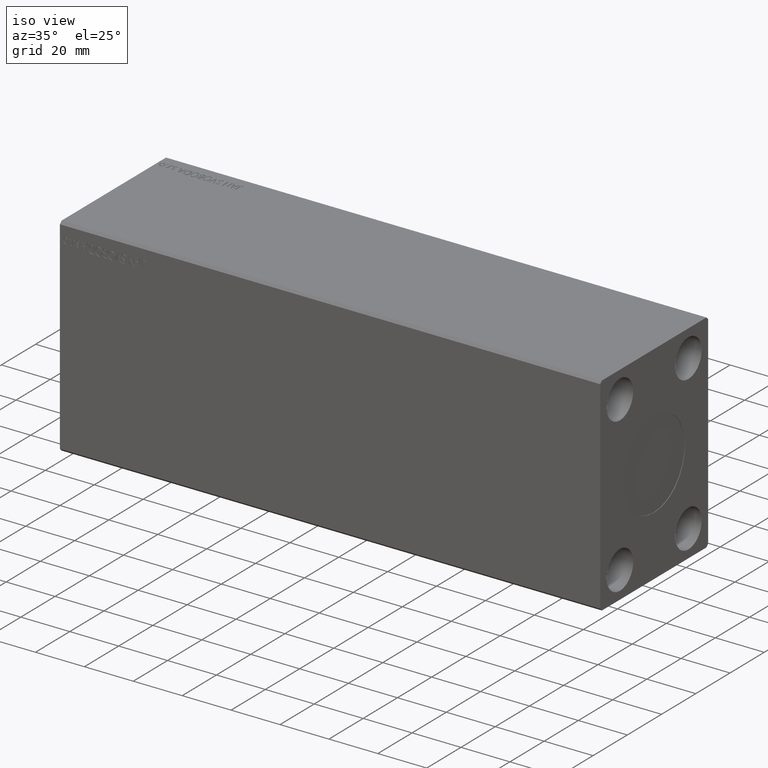
[diagram: clean part render]
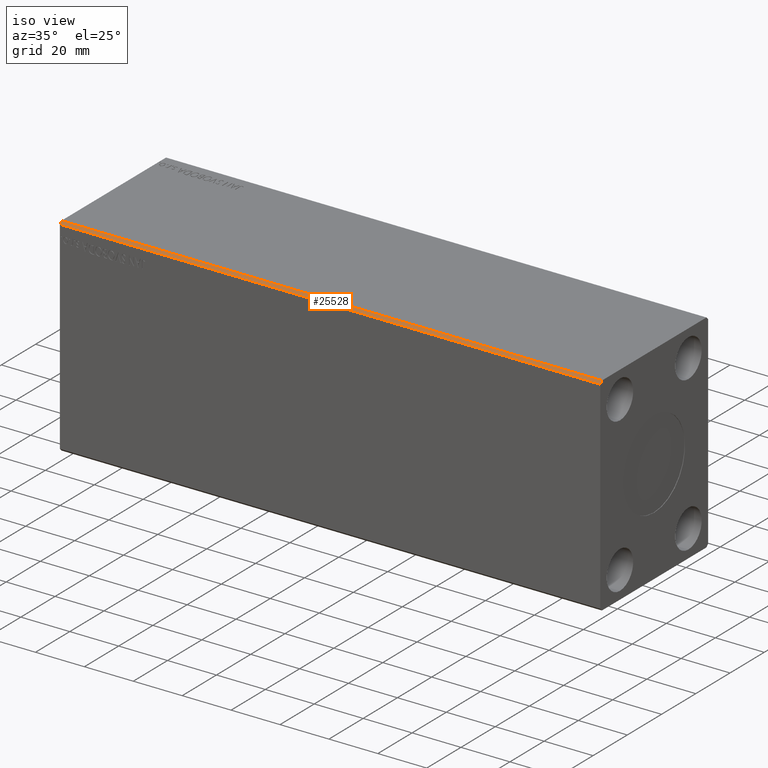
[diagram: same view with one face highlighted and labeled with its STEP entity id]
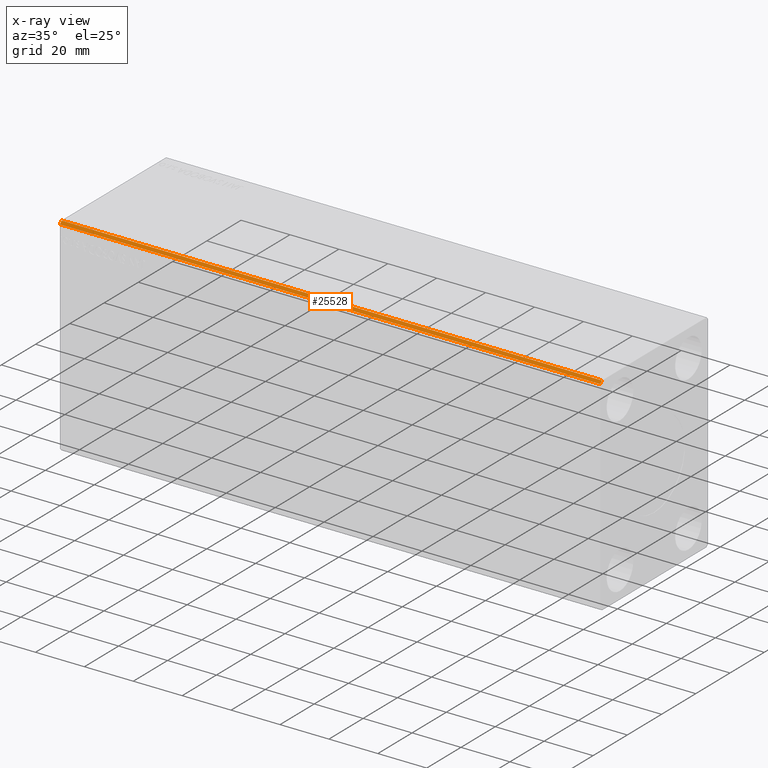
[diagram: x-ray of the same camera — body ghosted, the highlighted face saturated]
A machine part, iso view. The second image highlights one B-rep face of the part: STEP entity #25528.
The next image is the same camera in x-ray: the body ghosted, the highlighted face saturated — about 0% of this face is hidden behind the body in this view.
In plain terms, the highlighted planar face has unit normal (0, 0.7071, -0.7071).
Its self-contained STEP definition (entity closure, byte-faithful):
#143 = DIRECTION ( 'NONE',  ( 0.000000000000000000, 0.7071067811865489050, -0.7071067811865462405 ) ) ;
#785 = VECTOR ( 'NONE', #29062, 999.9999999999998863 ) ;
#1923 = VERTEX_POINT ( 'NONE', #3052 ) ;
#2651 = LINE ( 'NONE', #16176, #785 ) ;
#3052 = CARTESIAN_POINT ( 'NONE',  ( 221.0000000000000000, -31.50000000000000000, 41.49999999999999289 ) ) ;
#3367 = FACE_OUTER_BOUND ( 'NONE', #26570, .T. ) ;
#4845 = VERTEX_POINT ( 'NONE', #11291 ) ;
#6952 = CARTESIAN_POINT ( 'NONE',  ( 221.0000000000000000, -30.50000000000000355, 42.49999999999999289 ) ) ;
#8051 = AXIS2_PLACEMENT_3D ( 'NONE', #29563, #143, #26769 ) ;
#9772 = ORIENTED_EDGE ( 'NONE', *, *, #21484, .T. ) ;
#11291 = CARTESIAN_POINT ( 'NONE',  ( 221.0000000000000000, -30.50000000000000355, 42.49999999999999289 ) ) ;
#11318 = DIRECTION ( 'NONE',  ( 0.000000000000000000, -0.7071067811865462405, -0.7071067811865489050 ) ) ;
#11926 = CARTESIAN_POINT ( 'NONE',  ( 221.0000000000000000, -31.50000000000000000, 41.49999999999999289 ) ) ;
#12995 = ORIENTED_EDGE ( 'NONE', *, *, #40265, .T. ) ;
#13670 = VERTEX_POINT ( 'NONE', #42111 ) ;
#16176 = CARTESIAN_POINT ( 'NONE',  ( 221.0000000000000000, -30.50000000000000355, 42.49999999999999289 ) ) ;
#16476 = PLANE ( 'NONE',  #8051 ) ;
#18823 = CARTESIAN_POINT ( 'NONE',  ( 0.000000000000000000, -30.50000000000000355, 42.49999999999999289 ) ) ;
#20484 = DIRECTION ( 'NONE',  ( -1.000000000000000000, -0.000000000000000000, -0.000000000000000000 ) ) ;
#21484 = EDGE_CURVE ( 'NONE', #4845, #13670, #36381, .T. ) ;
#23355 = ORIENTED_EDGE ( 'NONE', *, *, #37146, .F. ) ;
#24798 = DIRECTION ( 'NONE',  ( -1.000000000000000000, -0.000000000000000000, -0.000000000000000000 ) ) ;
#25528 = ADVANCED_FACE ( 'NONE', ( #3367 ), #16476, .F. ) ;
#26570 = EDGE_LOOP ( 'NONE', ( #12995, #23355, #26788, #9772 ) ) ;
#26769 = DIRECTION ( 'NONE',  ( 0.000000000000000000, 0.7071067811865462405, 0.7071067811865489050 ) ) ;
#26788 = ORIENTED_EDGE ( 'NONE', *, *, #41716, .F. ) ;
#28052 = LINE ( 'NONE', #18823, #39162 ) ;
#29062 = DIRECTION ( 'NONE',  ( 0.000000000000000000, -0.7071067811865462405, -0.7071067811865489050 ) ) ;
#29563 = CARTESIAN_POINT ( 'NONE',  ( 221.0000000000000000, -30.50000000000000355, 42.49999999999999289 ) ) ;
#30185 = VECTOR ( 'NONE', #24798, 1000.000000000000000 ) ;
#30648 = CARTESIAN_POINT ( 'NONE',  ( 0.000000000000000000, -31.50000000000000000, 41.49999999999999289 ) ) ;
#34544 = VERTEX_POINT ( 'NONE', #30648 ) ;
#36381 = LINE ( 'NONE', #6952, #38838 ) ;
#37146 = EDGE_CURVE ( 'NONE', #1923, #34544, #41969, .T. ) ;
#38838 = VECTOR ( 'NONE', #20484, 1000.000000000000000 ) ;
#39162 = VECTOR ( 'NONE', #11318, 999.9999999999998863 ) ;
#40265 = EDGE_CURVE ( 'NONE', #13670, #34544, #28052, .T. ) ;
#41716 = EDGE_CURVE ( 'NONE', #4845, #1923, #2651, .T. ) ;
#41969 = LINE ( 'NONE', #11926, #30185 ) ;
#42111 = CARTESIAN_POINT ( 'NONE',  ( 0.000000000000000000, -30.50000000000000355, 42.49999999999999289 ) ) ;